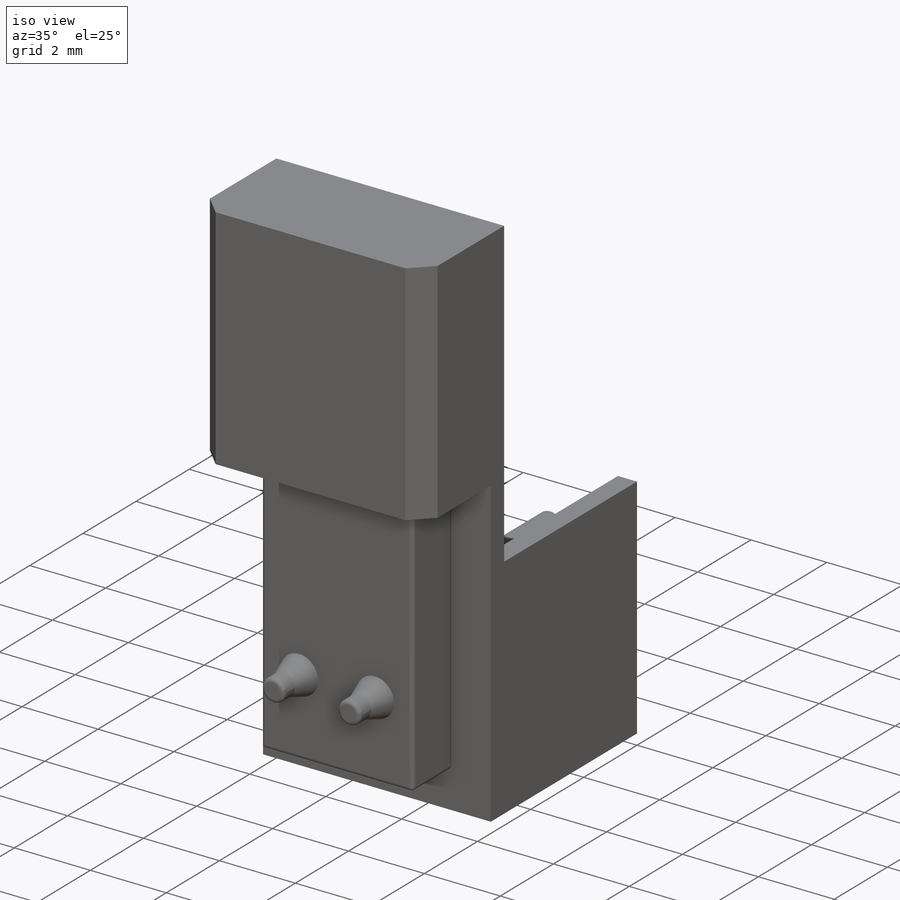
[diagram: iso view]
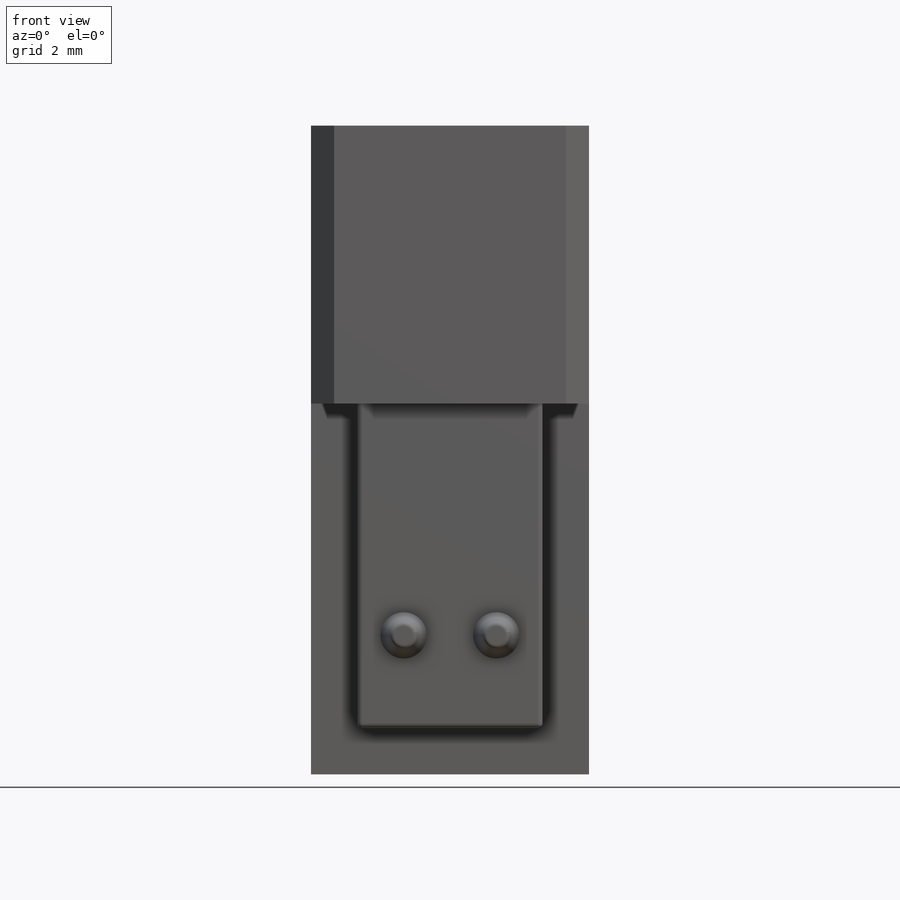
[diagram: front view]
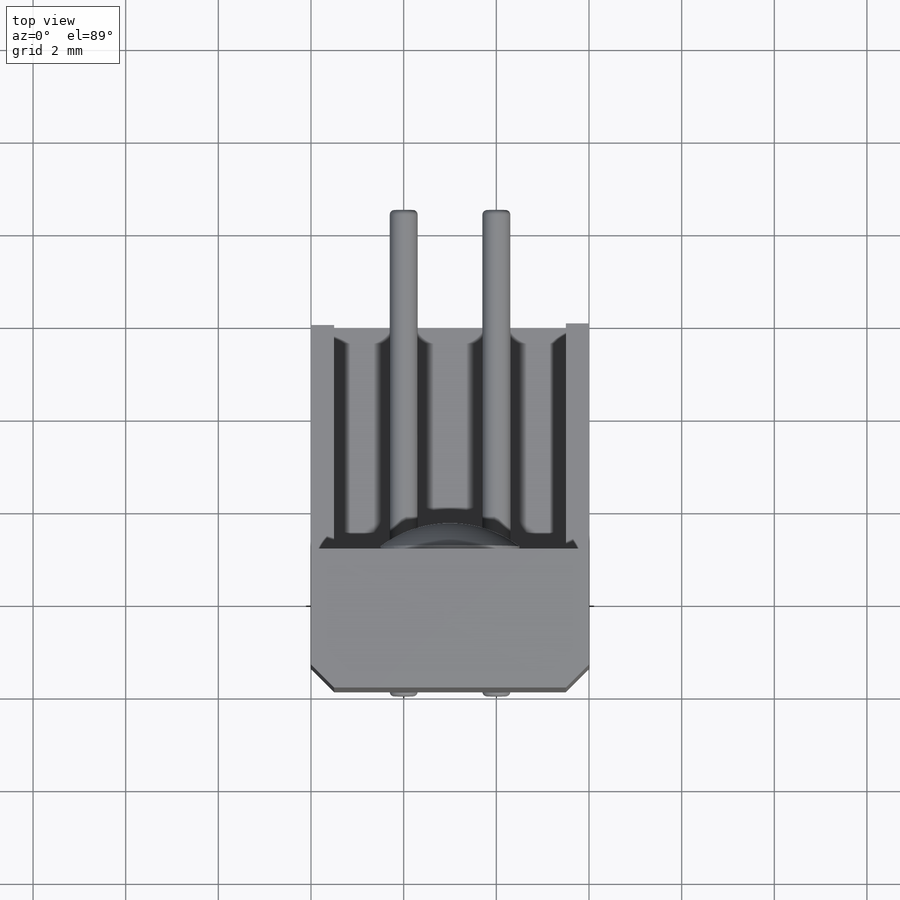
[diagram: top view]
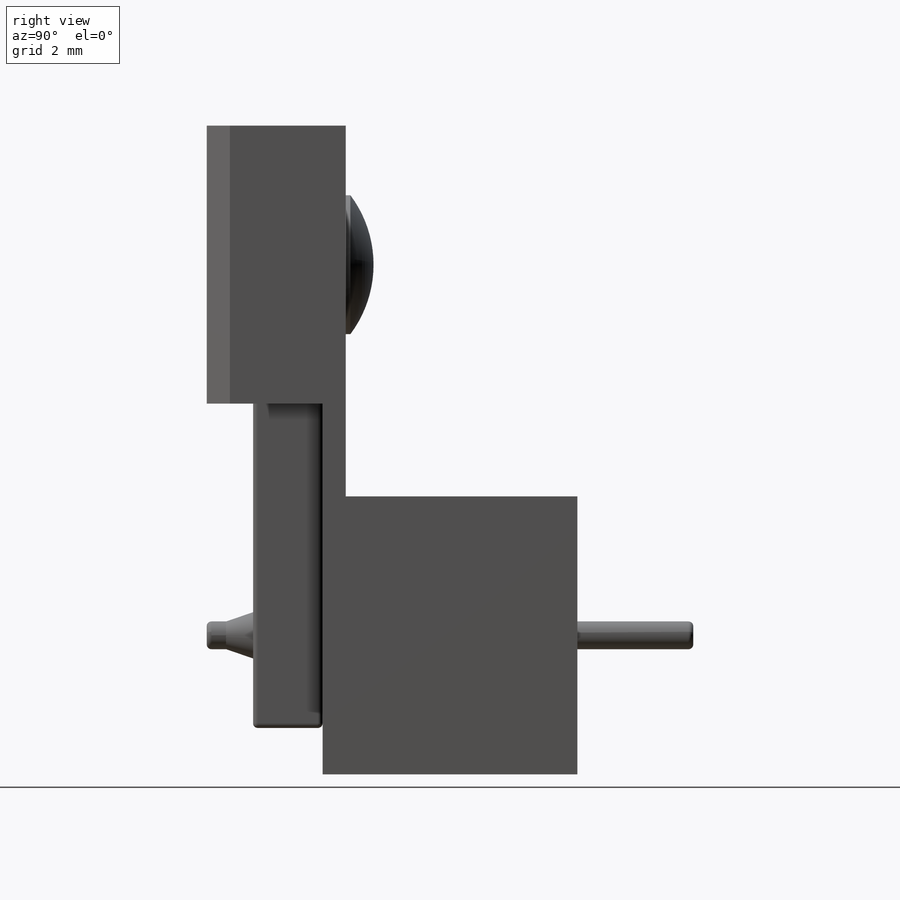
[diagram: right view]
SOLIDWORKS PART (.sldprt)
format: sldprt  version: not decoded by parser v0  size: 442,880 bytes
history: native  units: mm
features: sketch x9, extrude x9, fillet x4, plane x3, material x1, chamfer x1, dome x1 (+10 scaffold rows collapsed)
feature tree (38):
  scaffold x10  (default folders/planes/origin — collapsed)
  material  "Material <not specified>"
  plane  "Ön Düzlem"
  plane  "Üst Düzlem"
  plane  "Sağ Düzlem"
  sketch  "Sketch1"  dims[D1=6.0mm D2=6.0mm D3=4.0mm D4=0.5mm]
  extrude  "Boss-Extrude1"  Depth=5mm
  sketch  "Sketch2"  dims[D1=14.0mm]
  extrude  "Boss-Extrude2"  Depth=0.5mm
  sketch  "Sketch3"  dims[D1=6.0mm D2=6.0mm D3=0.5mm D4=0.5mm D5=0.5mm]
  extrude  "Boss-Extrude3"  Depth=2mm
  sketch  "Sketch8"  dims[D1=0.5mm D2=0.5mm D3=0.5mm D4=0.5mm D5=2.0mm]
  extrude  "Boss-Extrude4"  [1 undecoded]
  sketch  "Sketch9"
  extrude  "Boss-Extrude5"  [1 undecoded]
  sketch  "Sketch10"  dims[D1=1.0mm D2=1.0mm D3=1.0mm D4=1.0mm]
  extrude  "Boss-Extrude6"  Depth=1.5mm
  fillet  "Fillet1"  Radius=0.1mm
  chamfer  "Chamfer1"  Distance=0.5mm Angle=45deg
  sketch  "Sketch11"  dims[c1.D1=3.0mm c1.D2=3.0mm c1.D3=3.0mm c2.D2=3.0mm c2.D3=3.0mm]
  extrude  "Boss-Extrude7"  Depth=0.1mm
  dome  "Dome1"
  fillet  "Fillet2"  Radius=0.1mm
  sketch  "Sketch12"  dims[c1.D1=0.6mm c1.D2=0.6mm c1.D3=0.8mm c1.D4=0.8mm c1.D5=0.8mm c1.D6=0.8mm c1.D7=0.6mm c2.D3=2.0mm c2.D4=2.0mm c2.D5=1.0mm c2.D6=1.0mm c2.D7=2.0mm]
  extrude  "Boss-Extrude8"  Depth=1mm
  fillet  "Fillet4"  Radius=0.1mm
  fillet  "Fillet5"  Radius=0.1mm
  sketch  "Sketch13"  dims[D1=1.0mm D2=1.0mm]
  extrude  "Boss-Extrude9"  Depth=0.9mm
decode coverage: 20 of 24 modeling features carry decoded parameters
note: 2 parameter values undecoded
note: suppression state not decoded; provenance and decode notes live in map.json
